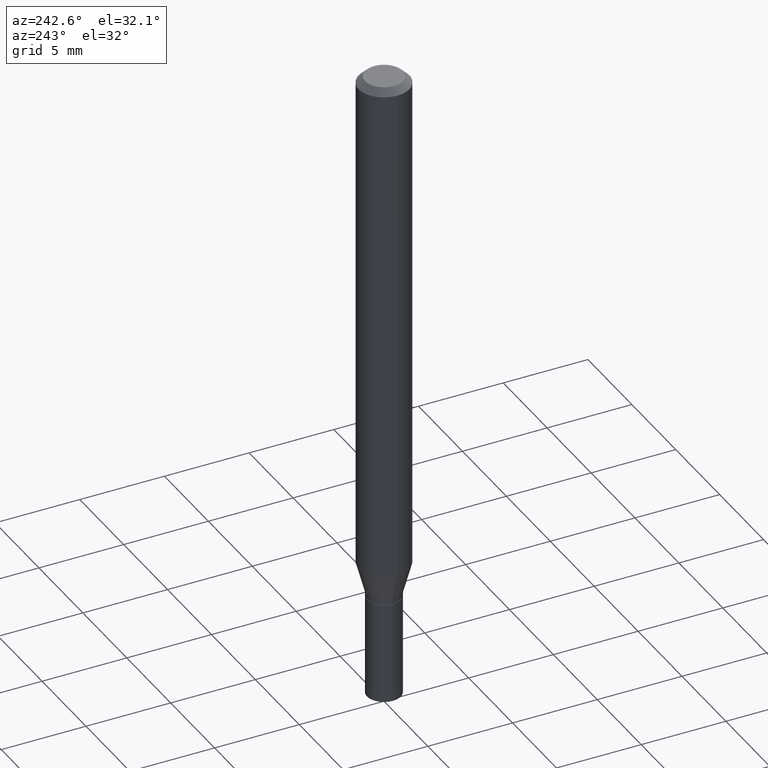
[diagram: clean part render]
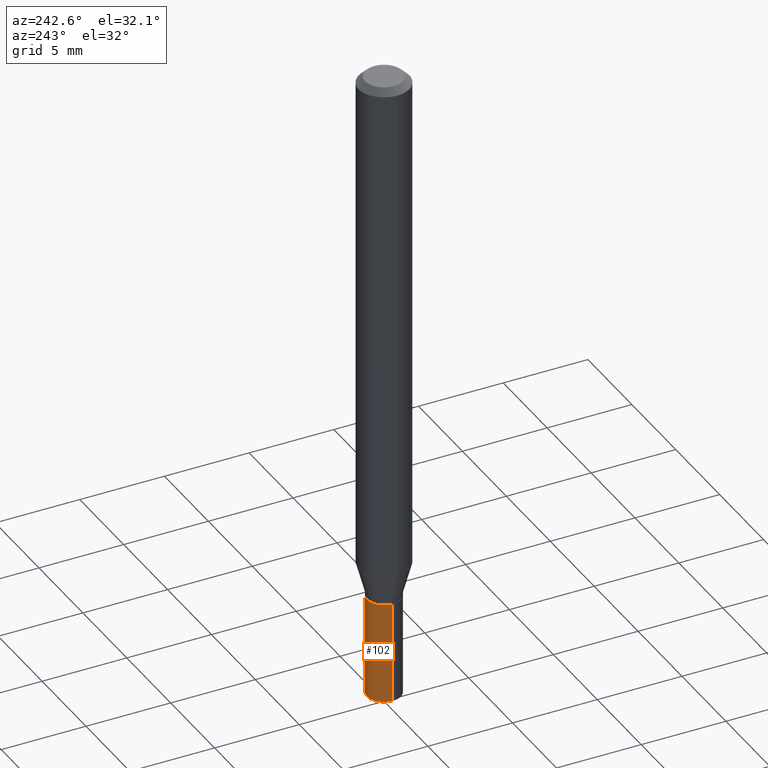
[diagram: same view with one face highlighted and labeled with its STEP entity id]
A machine part, auxiliary view. The second image highlights one B-rep face of the part: STEP entity #102.
In plain terms, the highlighted cylindrical surface (edge-blend (fillet) strip) has radius 0.9995 mm, axis along (-0, 0, 1).
Its self-contained STEP definition (entity closure, byte-faithful):
#34 = CARTESIAN_POINT ( 'NONE',  ( 0.03935000000000000303, -5.512001589631673094E-15, -1.500000000000000222 ) ) ;
#37 = CARTESIAN_POINT ( 'NONE',  ( 0.03935000000000000303, -2.747795813669546211E-16, 1.918775561275701074E-30 ) ) ;
#52 = CARTESIAN_POINT ( 'NONE',  ( -0.03935000000000000303, -4.545279495625743861E-15, -1.500000000000000222 ) ) ;
#63 = EDGE_CURVE ( 'NONE', #75, #462, #327, .T. ) ;
#75 = VERTEX_POINT ( 'NONE', #34 ) ;
#87 = VERTEX_POINT ( 'NONE', #108 ) ;
#89 = CARTESIAN_POINT ( 'NONE',  ( -0.03935000000000000303, 2.795985665215994447E-16, -1.935600958015305291E-30 ) ) ;
#102 = ADVANCED_FACE ( 'NONE', ( #309 ), #351, .T. ) ;
#108 = CARTESIAN_POINT ( 'NONE',  ( -0.03935000000000000303, -4.545279495625743861E-15, -1.263800000000000034 ) ) ;
#111 = DIRECTION ( 'NONE',  ( 1.000000000000000000, -6.982962677686266711E-15, 4.876176775795936353E-29 ) ) ;
#118 = ORIENTED_EDGE ( 'NONE', *, *, #63, .F. ) ;
#134 = CIRCLE ( 'NONE', #268, 0.03935000000000000303 ) ;
#143 = AXIS2_PLACEMENT_3D ( 'NONE', #294, #188, #363 ) ;
#160 = DIRECTION ( 'NONE',  ( -2.445468806185136877E-29, 3.491481338843145188E-15, 1.000000000000000000 ) ) ;
#179 = CARTESIAN_POINT ( 'NONE',  ( 0.000000000000000000, 0.000000000000000000, 0.000000000000000000 ) ) ;
#188 = DIRECTION ( 'NONE',  ( -2.445468806185136597E-29, 3.491481338843145583E-15, 1.000000000000000000 ) ) ;
#192 = DIRECTION ( 'NONE',  ( 1.000000000000000000, -6.982962677686269077E-15, 0.000000000000000000 ) ) ;
#200 = EDGE_CURVE ( 'NONE', #245, #87, #406, .T. ) ;
#202 = AXIS2_PLACEMENT_3D ( 'NONE', #179, #438, #111 ) ;
#205 = CARTESIAN_POINT ( 'NONE',  ( 0.03935000000000000303, -4.687313697396922464E-15, -1.263800000000000034 ) ) ;
#220 = ORIENTED_EDGE ( 'NONE', *, *, #281, .F. ) ;
#225 = DIRECTION ( 'NONE',  ( -2.445468806185136597E-29, 3.491481338843145583E-15, 1.000000000000000000 ) ) ;
#232 = VECTOR ( 'NONE', #288, 39.37007874015748143 ) ;
#245 = VERTEX_POINT ( 'NONE', #52 ) ;
#252 = EDGE_CURVE ( 'NONE', #75, #245, #274, .T. ) ;
#261 = CARTESIAN_POINT ( 'NONE',  ( 3.090583477256776013E-29, -4.412534116029967548E-15, -1.263800000000000034 ) ) ;
#268 = AXIS2_PLACEMENT_3D ( 'NONE', #261, #225, #192 ) ;
#274 = CIRCLE ( 'NONE', #143, 0.03935000000000000303 ) ;
#277 = ORIENTED_EDGE ( 'NONE', *, *, #200, .T. ) ;
#281 = EDGE_CURVE ( 'NONE', #462, #87, #134, .T. ) ;
#288 = DIRECTION ( 'NONE',  ( -2.445468806185136877E-29, 3.491481338843145188E-15, 1.000000000000000000 ) ) ;
#294 = CARTESIAN_POINT ( 'NONE',  ( 3.668203209277704895E-29, -5.237222008264718177E-15, -1.500000000000000222 ) ) ;
#309 = FACE_OUTER_BOUND ( 'NONE', #382, .T. ) ;
#327 = LINE ( 'NONE', #37, #232 ) ;
#339 = VECTOR ( 'NONE', #160, 39.37007874015748143 ) ;
#351 = CYLINDRICAL_SURFACE ( 'NONE', #202, 0.03935000000000000303 ) ;
#363 = DIRECTION ( 'NONE',  ( 1.000000000000000000, -6.982962677686269077E-15, 0.000000000000000000 ) ) ;
#382 = EDGE_LOOP ( 'NONE', ( #457, #277, #220, #118 ) ) ;
#406 = LINE ( 'NONE', #89, #339 ) ;
#438 = DIRECTION ( 'NONE',  ( -2.445468806185136597E-29, 3.491481338843145583E-15, 1.000000000000000000 ) ) ;
#457 = ORIENTED_EDGE ( 'NONE', *, *, #252, .T. ) ;
#462 = VERTEX_POINT ( 'NONE', #205 ) ;